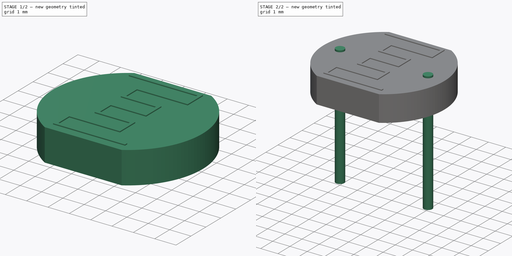
[diagram: build sequence overview — one tinted view per stage of 2, left to right]
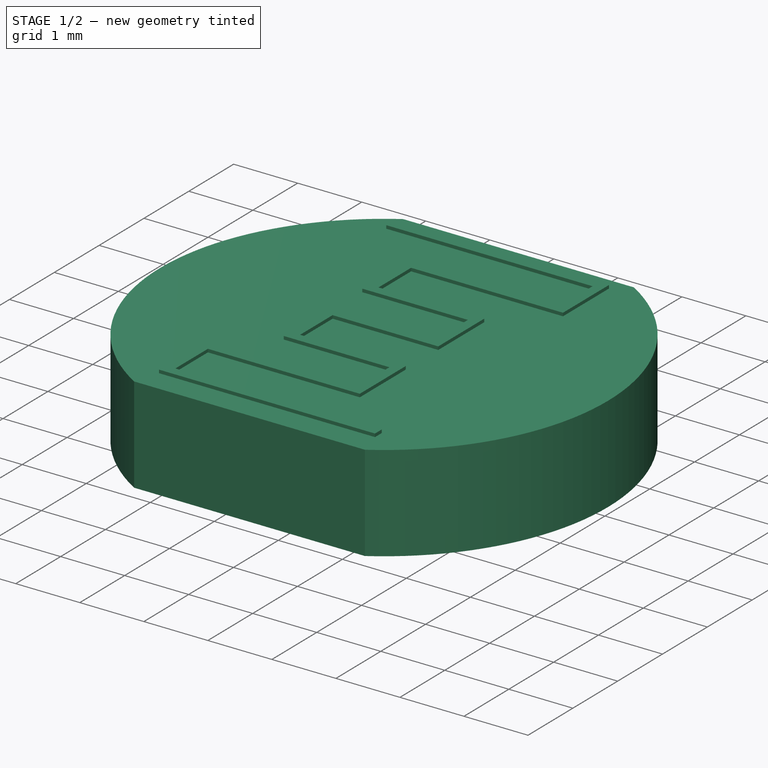
[diagram: stage 1 of 2 — iso view after this stage's code; geometry added in this stage tinted green]
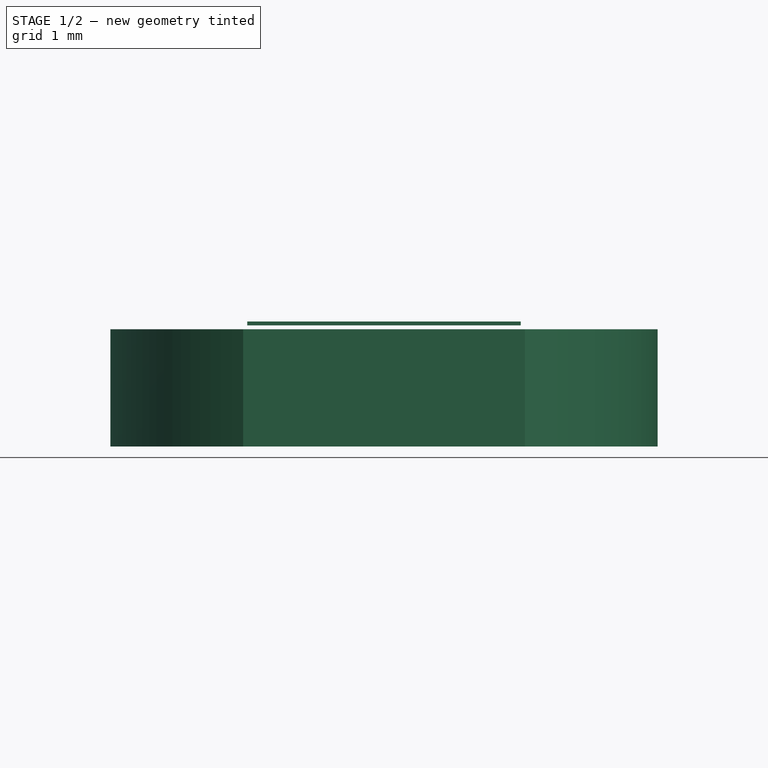
[diagram: stage 1 of 2 — front view after this stage's code; geometry added in this stage tinted green]
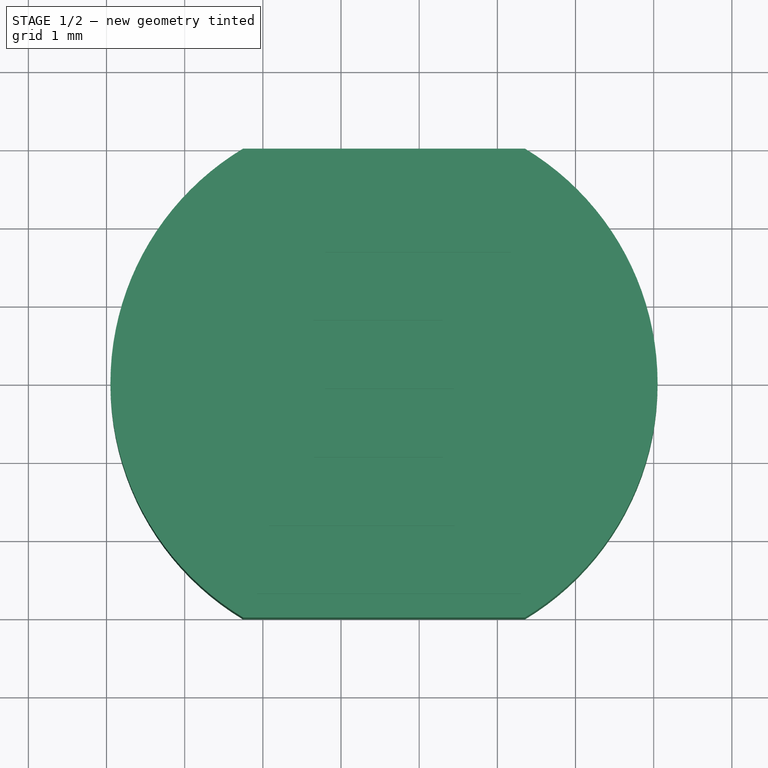
[diagram: stage 1 of 2 — top view after this stage's code; geometry added in this stage tinted green]
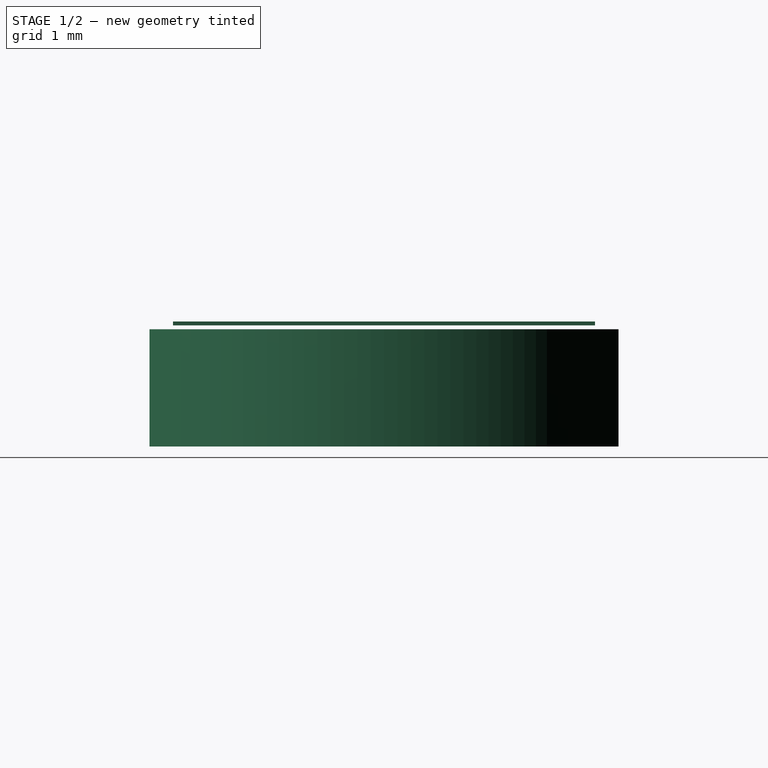
[diagram: stage 1 of 2 — right view after this stage's code; geometry added in this stage tinted green]
FCSTD DOCUMENT  (FreeCAD 0.16R6712 (Git))
Label: R_LDR_7x6mm_P5.1mm_Vertical
License: All rights reserved
LicenseURL: http://en.wikipedia.org/wiki/All_rights_reserved
objects: Sketcher::SketchObject×3, PartDesign::Pad×3, Spreadsheet::Sheet×1, Part::MultiFuse×1
note: 10 computed .brp shape members not serialized (recipe doc carries the construction recipe); baked Part::Feature solids carry a one-line shape summary decoded from their .brp

FEATURE [Sketcher::SketchObject] Sketch001
  Placement = pos=(0,0,3.9) rot=(0,0,1;0rad)
  expr: Placement.Base.z = Data.Htop - 0.1
  expr: Placement.Rotation.Axis.z = Data.Htop
  expr: Constraints[8] = Data.H
  expr: Constraints[7] = Data.DOuter / 2
  expr: Constraints[19] = Data.Wid
  expr: Constraints[21] = (Data.Wid - Data.RM) / 2
  sketch-geometry (8):
    g0: ArcOfCircle CenterX=2.55 CenterY=0 CenterZ=0 NormalX=0 NormalY=0 NormalZ=1 Radius=3.5 StartAngle=2.1119 EndAngle=4.17129
    g1: ArcOfCircle CenterX=2.55 CenterY=0 CenterZ=0 NormalX=0 NormalY=0 NormalZ=1 Radius=3.5 StartAngle=5.25349 EndAngle=7.31288
    g2: LineSegment StartX=0.747224 StartY=3 StartZ=0 EndX=4.35278 EndY=3 EndZ=0
    g3: LineSegment StartX=0.747224 StartY=-3 StartZ=0 EndX=4.35278 EndY=-3 EndZ=0
    g4: GeomPoint [constr] X=-0.95 Y=0 Z=0
    g5: GeomPoint [constr] X=6.05 Y=0 Z=0
    g6: LineSegment [constr] StartX=0.747224 StartY=3 StartZ=0 EndX=0.747224 EndY=-3 EndZ=0
    g7: GeomPoint [constr] X=0.747224 Y=0 Z=0
  constraints (22):
    c: PointOnObject(g0,g-1)
    c: Coincident(g2,g0)
    c: Coincident(g2,g1)
    c: Horizontal(g2)
    c: Coincident(g3,g0)
    c: Horizontal(g3)
    c: Equal(g1,g0)
    c: Radius(g1) = 3.5
    c: DistanceY(g1,g1) = 6
    c: PointOnObject(g4,g-1)
    c: PointOnObject(g4,g0)
    c: PointOnObject(g5,g1)
    c: PointOnObject(g5,g-1)
    c: Coincident(g1,g3)
    c: Coincident(g6,g0)
    c: Coincident(g6,g0)
    c: Vertical(g6)
    c: PointOnObject(g7,g-1)
    c: Symmetric(g6,g6,g7)
    c: DistanceX(g4,g5) = 7
    c: PointOnObject(g1,g-1)
    c: DistanceX(g4,g-1) = 0.95
FEATURE [PartDesign::Pad] Pad001
  Length = 1.5
  Length2 = 100
  Placement = pos=(0,0,3.9) rot=(0,0,1;0rad)
  Reversed = true
  Sketch = -> Sketch001
  Type = 0
  expr: Length = Data.D
FEATURE [Sketcher::SketchObject] Sketch002
  Placement = pos=(0,0,3.95) rot=(0,0,1;0rad)
  expr: Constraints[149] = Data.DStructure
  expr: Constraints[186] = Data.RM / 6
  expr: Constraints[185] = Data.RM * 0.025
  expr: Placement.Base.z = Data.Htop - 0.05
  expr: Constraints[8] = Data.H * 0.9
  expr: Constraints[11] = Data.Wid * 0.5
  expr: Constraints[18] = Data.RM / 2
  expr: Placement.Rotation.Axis.z = Data.Htop
  sketch-geometry (66):
    g0: LineSegment [constr] StartX=0.8 StartY=2.7 StartZ=0 EndX=4.3 EndY=2.7 EndZ=0
    g1: LineSegment [constr] StartX=4.3 StartY=2.7 StartZ=0 EndX=4.3 EndY=-2.7 EndZ=0
    g2: LineSegment [constr] StartX=4.3 StartY=-2.7 StartZ=0 EndX=0.8 EndY=-2.7 EndZ=0
    g3: LineSegment [constr] StartX=0.8 StartY=-2.7 StartZ=0 EndX=0.8 EndY=2.7 EndZ=0
    g4: GeomPoint [constr] X=0.8 Y=0 Z=0
    g5: LineSegment [constr] StartX=0.8 StartY=0 StartZ=0 EndX=4.3 EndY=0 EndZ=0
    g6: LineSegment [constr] StartX=0 StartY=0 StartZ=0 EndX=2.55 EndY=0 EndZ=0
    g7: LineSegment StartX=0.8 StartY=2.55 StartZ=0 EndX=4.0225 EndY=2.55 EndZ=0
    g8: LineSegment StartX=4.1725 StartY=2.55 StartZ=0 EndX=4.1725 EndY=2.7 EndZ=0
    g9: LineSegment StartX=4.1725 StartY=2.7 StartZ=0 EndX=0.8 EndY=2.7 EndZ=0
    g10: LineSegment StartX=0.8 StartY=2.7 StartZ=0 EndX=0.8 EndY=2.55 EndZ=0
    g11: LineSegment [constr] StartX=4.0225 StartY=2.55 StartZ=0 EndX=4.1725 EndY=2.55 EndZ=0
    g12: LineSegment StartX=4.1725 StartY=2.55 StartZ=0 EndX=4.1725 EndY=1.675 EndZ=0
    g13: LineSegment StartX=4.1725 StartY=1.675 StartZ=0 EndX=4.0225 EndY=1.675 EndZ=0
    g14: LineSegment StartX=4.0225 StartY=1.825 StartZ=0 EndX=4.0225 EndY=2.55 EndZ=0
    g15: LineSegment StartX=4.0225 StartY=1.825 StartZ=0 EndX=1.65 EndY=1.825 EndZ=0
    g16: LineSegment StartX=1.65 StartY=1.825 StartZ=0 EndX=1.65 EndY=1.675 EndZ=0
    g17: LineSegment StartX=1.8 StartY=1.675 StartZ=0 EndX=4.0225 EndY=1.675 EndZ=0
    g18: LineSegment [constr] StartX=4.0225 StartY=1.675 StartZ=0 EndX=4.0225 EndY=1.825 EndZ=0
    g19: LineSegment [constr] StartX=1.8 StartY=1.675 StartZ=0 EndX=1.65 EndY=1.675 EndZ=0
    g20: LineSegment StartX=1.65 StartY=1.675 StartZ=0 EndX=1.65 EndY=0.8 EndZ=0
    g21: LineSegment StartX=1.65 StartY=0.8 StartZ=0 EndX=1.8 EndY=0.8 EndZ=0
    g22: LineSegment StartX=1.8 StartY=0.95 StartZ=0 EndX=1.8 EndY=1.675 EndZ=0
    g23: LineSegment StartX=1.8 StartY=0.95 StartZ=0 EndX=3.45 EndY=0.95 EndZ=0
    g24: LineSegment StartX=3.45 StartY=0.95 StartZ=0 EndX=3.45 EndY=0.8 EndZ=0
    g25: LineSegment StartX=3.3 StartY=0.8 StartZ=0 EndX=1.8 EndY=0.8 EndZ=0
    g26: LineSegment [constr] StartX=1.8 StartY=0.8 StartZ=0 EndX=1.8 EndY=0.95 EndZ=0
    g27: LineSegment [constr] StartX=3.3 StartY=0.8 StartZ=0 EndX=3.45 EndY=0.8 EndZ=0
    g28: LineSegment StartX=3.45 StartY=0.8 StartZ=0 EndX=3.45 EndY=-0.075 EndZ=0
    g29: LineSegment StartX=3.45 StartY=-0.075 StartZ=0 EndX=3.3 EndY=-0.075 EndZ=0
    g30: LineSegment StartX=3.3 StartY=0.075 StartZ=0 EndX=1.65 EndY=0.075 EndZ=0
    g31: LineSegment StartX=1.65 StartY=0.075 StartZ=0 EndX=1.65 EndY=-0.075 EndZ=0
    g32: LineSegment StartX=1.8 StartY=-0.075 StartZ=0 EndX=3.3 EndY=-0.075 EndZ=0
    g33: LineSegment [constr] StartX=3.3 StartY=-0.075 StartZ=0 EndX=3.3 EndY=0.075 EndZ=0
    g34: LineSegment [constr] StartX=1.8 StartY=-0.075 StartZ=0 EndX=1.65 EndY=-0.075 EndZ=0
    g35: LineSegment StartX=1.65 StartY=-0.075 StartZ=0 EndX=1.65 EndY=-0.95 EndZ=0
    g36: LineSegment StartX=1.65 StartY=-0.95 StartZ=0 EndX=1.8 EndY=-0.95 EndZ=0
    g37: LineSegment StartX=1.8 StartY=-0.8 StartZ=0 EndX=1.8 EndY=-0.075 EndZ=0
    g38: LineSegment StartX=1.8 StartY=-0.8 StartZ=0 EndX=3.45 EndY=-0.8 EndZ=0
    g39: LineSegment StartX=3.45 StartY=-0.8 StartZ=0 EndX=3.45 EndY=-0.95 EndZ=0
    g40: LineSegment StartX=3.3 StartY=-0.95 StartZ=0 EndX=1.8 EndY=-0.95 EndZ=0
    g41: LineSegment [constr] StartX=1.8 StartY=-0.95 StartZ=0 EndX=1.8 EndY=-0.8 EndZ=0
    g42: LineSegment [constr] StartX=3.3 StartY=-0.95 StartZ=0 EndX=3.45 EndY=-0.95 EndZ=0
    g43: LineSegment StartX=3.45 StartY=-0.95 StartZ=0 EndX=3.45 EndY=-1.825 EndZ=0
    g44: LineSegment StartX=3.45 StartY=-1.825 StartZ=0 EndX=3.3 EndY=-1.825 EndZ=0
    g45: LineSegment StartX=3.3 StartY=-1.675 StartZ=0 EndX=3.3 EndY=-0.95 EndZ=0
    g46: LineSegment StartX=3.3 StartY=-1.675 StartZ=0 EndX=0.9275 EndY=-1.675 EndZ=0
    g47: LineSegment StartX=0.9275 StartY=-1.675 StartZ=0 EndX=0.9275 EndY=-1.825 EndZ=0
    g48: LineSegment StartX=1.0775 StartY=-1.825 StartZ=0 EndX=3.3 EndY=-1.825 EndZ=0
    g49: LineSegment [constr] StartX=3.3 StartY=-1.825 StartZ=0 EndX=3.3 EndY=-1.675 EndZ=0
    g50: LineSegment [constr] StartX=1.0775 StartY=-1.825 StartZ=0 EndX=0.9275 EndY=-1.825 EndZ=0
    g51: LineSegment StartX=0.9275 StartY=-1.825 StartZ=0 EndX=0.9275 EndY=-2.7 EndZ=0
    g52: LineSegment StartX=0.9275 StartY=-2.7 StartZ=0 EndX=1.0775 EndY=-2.7 EndZ=0
    g53: LineSegment StartX=1.0775 StartY=-2.55 StartZ=0 EndX=1.0775 EndY=-1.825 EndZ=0
    g54: LineSegment StartX=1.0775 StartY=-2.55 StartZ=0 EndX=4.3 EndY=-2.55 EndZ=0
    g55: LineSegment StartX=4.3 StartY=-2.55 StartZ=0 EndX=4.3 EndY=-2.7 EndZ=0
    g56: LineSegment StartX=4.3 StartY=-2.7 StartZ=0 EndX=1.0775 EndY=-2.7 EndZ=0
    g57: LineSegment [constr] StartX=1.0775 StartY=-2.7 StartZ=0 EndX=1.0775 EndY=-2.55 EndZ=0
    g58: LineSegment [constr] StartX=0.9275 StartY=-1.675 StartZ=0 EndX=0.8 EndY=-1.675 EndZ=0
    g59: LineSegment [constr] StartX=4.1725 StartY=1.675 StartZ=0 EndX=4.3 EndY=1.675 EndZ=0
    g60: LineSegment [constr] StartX=1.65 StartY=0.8 StartZ=0 EndX=1.65 EndY=0.075 EndZ=0
    g61: LineSegment StartX=3.3 StartY=0.8 StartZ=0 EndX=3.3 EndY=0.075 EndZ=0
    g62: GeomPoint [constr] X=3.3 Y=0 Z=0
    g63: LineSegment [constr] StartX=1.65 StartY=1.825 StartZ=0 EndX=0.8 EndY=1.825 EndZ=0
    g64: LineSegment [constr] StartX=3.45 StartY=-1.825 StartZ=0 EndX=4.3 EndY=-1.825 EndZ=0
    g65: LineSegment [constr] StartX=3.45 StartY=-0.075 StartZ=0 EndX=3.45 EndY=-0.8 EndZ=0
  constraints (190):
    c: Coincident(g0,g1)
    c: Coincident(g1,g2)
    c: Coincident(g2,g3)
    c: Coincident(g3,g0)
    c: Horizontal(g0)
    c: Horizontal(g2)
    c: Vertical(g1)
    c: Vertical(g3)
    c: DistanceY(g1,g1) = 5.4
    c: PointOnObject(g4,g-1)
    c: Symmetric(g3,g3,g4)
    c: DistanceX(g0,g0) = 3.5
    c: Coincident(g5,g4)
    c: PointOnObject(g5,g1)
    c: Horizontal(g5)
    c: Coincident(g6,g-1)
    c: PointOnObject(g6,g5)
    c: Symmetric(g5,g5,g6)
    c: DistanceX(g6,g6) = 2.55
    c: Coincident(g8,g9)
    c: Coincident(g9,g10)
    c: Coincident(g10,g7)
    c: Horizontal(g7)
    c: Horizontal(g9)
    c: Vertical(g8)
    c: Vertical(g10)
    c: PointOnObject(g10,g3)
    c: PointOnObject(g8,g0)
    c: Coincident(g11,g12)
    c: Coincident(g12,g13)
    c: Coincident(g14,g11)
    c: Horizontal(g11)
    c: Horizontal(g13)
    c: Vertical(g12)
    c: Vertical(g14)
    c: PointOnObject(g11,g7)
    c: Coincident(g15,g16)
    c: Coincident(g17,g18)
    c: Horizontal(g15)
    c: Horizontal(g17)
    c: Vertical(g16)
    c: Vertical(g18)
    c: PointOnObject(g18,g14)
    c: Coincident(g19,g20)
    c: Coincident(g20,g21)
    c: Coincident(g22,g19)
    c: Horizontal(g19)
    c: Horizontal(g21)
    c: Vertical(g20)
    c: Vertical(g22)
    c: PointOnObject(g19,g17)
    c: Coincident(g23,g24)
    c: Coincident(g25,g26)
    c: Horizontal(g23)
    c: Horizontal(g25)
    c: Vertical(g24)
    c: Vertical(g26)
    c: PointOnObject(g26,g22)
    c: Coincident(g27,g28)
    c: Coincident(g28,g29)
    c: Horizontal(g27)
    c: Horizontal(g29)
    c: Vertical(g28)
    c: PointOnObject(g27,g25)
    c: Coincident(g30,g31)
    c: Coincident(g32,g33)
    c: Coincident(g33,g30)
    c: Horizontal(g30)
    c: Horizontal(g32)
    c: Vertical(g31)
    c: Vertical(g33)
    c: Coincident(g34,g35)
    c: Coincident(g35,g36)
    c: Coincident(g37,g34)
    c: Horizontal(g34)
    c: Horizontal(g36)
    c: Vertical(g35)
    c: Vertical(g37)
    c: PointOnObject(g34,g32)
    c: Coincident(g38,g39)
    c: Coincident(g40,g41)
    c: Horizontal(g38)
    c: Horizontal(g40)
    c: Vertical(g39)
    c: Vertical(g41)
    c: PointOnObject(g41,g37)
    c: Coincident(g43,g44)
    c: Coincident(g45,g42)
    c: Horizontal(g42)
    c: Horizontal(g44)
    c: Vertical(g43)
    c: Vertical(g45)
    c: PointOnObject(g42,g40)
    c: Coincident(g46,g47)
    c: Coincident(g48,g49)
    c: Horizontal(g46)
    c: Horizontal(g48)
    c: Vertical(g47)
    c: Vertical(g49)
    c: PointOnObject(g49,g45)
    c: Coincident(g50,g51)
    c: Coincident(g51,g52)
    c: Coincident(g53,g50)
    c: Horizontal(g50)
    c: Horizontal(g52)
    c: Vertical(g51)
    c: Vertical(g53)
    c: PointOnObject(g50,g48)
    c: Coincident(g54,g55)
    c: Coincident(g55,g56)
    c: Coincident(g56,g57)
    c: Horizontal(g54)
    c: Horizontal(g56)
    c: Vertical(g55)
    c: Vertical(g57)
    c: Coincident(g52,g56)
    c: Coincident(g44,g48)
    c: Coincident(g47,g50)
    c: Coincident(g36,g40)
    c: Coincident(g31,g34)
    c: Coincident(g29,g32)
    c: Coincident(g24,g27)
    c: Coincident(g21,g25)
    c: Coincident(g16,g19)
    c: Coincident(g13,g17)
    c: Coincident(g8,g11)
    c: PointOnObject(g7,g14)
    c: Coincident(g14,g15)
    c: PointOnObject(g17,g22)
    c: Coincident(g22,g23)
    c: PointOnObject(g32,g37)
    c: Coincident(g37,g38)
    c: PointOnObject(g40,g45)
    c: Coincident(g45,g46)
    c: PointOnObject(g48,g53)
    c: Coincident(g53,g54)
    c: Equal(g11,g18)
    c: Equal(g18,g19)
    c: Equal(g19,g26)
    c: Equal(g26,g27)
    c: Equal(g27,g33)
    c: Equal(g33,g34)
    c: Equal(g34,g41)
    c: Equal(g41,g42)
    c: Equal(g42,g49)
    c: Equal(g49,g50)
    c: Equal(g50,g57)
    c: Equal(g57,g52)
    c: Equal(g52,g8)
    c: DistanceY(g8,g8) = 0.15
    c: Coincident(g55,g1)
    c: Coincident(g57,g53)
    c: Coincident(g58,g46)
    c: PointOnObject(g58,g3)
    c: Horizontal(g58)
    c: Coincident(g59,g12)
    c: Horizontal(g59)
    c: Equal(g59,g58)
    c: Coincident(g60,g20)
    c: Coincident(g60,g30)
    c: Vertical(g60)
    c: Coincident(g39,g42)
    c: Coincident(g39,g43)
    c: Coincident(g61,g25)
    c: Coincident(g61,g30)
    c: Vertical(g61)
    c: PointOnObject(g62,g5)
    c: Symmetric(g33,g33,g62)
    c: Coincident(g27,g25)
    c: Coincident(g63,g15)
    c: PointOnObject(g63,g3)
    c: Horizontal(g63)
    c: Coincident(g64,g43)
    c: PointOnObject(g64,g1)
    c: Horizontal(g64)
    c: Coincident(g65,g28)
    c: Coincident(g65,g38)
    c: Vertical(g65)
    c: Equal(g64,g63)
    c: Equal(g37,g45)
    c: Equal(g45,g61)
    c: Equal(g61,g53)
    c: Equal(g53,g22)
    c: Equal(g22,g14)
    c: PointOnObject(g59,g1)
    c: DistanceX(g59,g59) = 0.1275
    c: DistanceX(g63,g63) = 0.85
    c: Coincident(g49,g45)
    c: Coincident(g41,g37)
    c: Coincident(g22,g26)
FEATURE [PartDesign::Pad] Pad002
  Length = 0.05
  Length2 = 100
  Placement = pos=(0,0,3.95) rot=(0,0,1;0rad)
  Sketch = -> Sketch002
  Type = 0
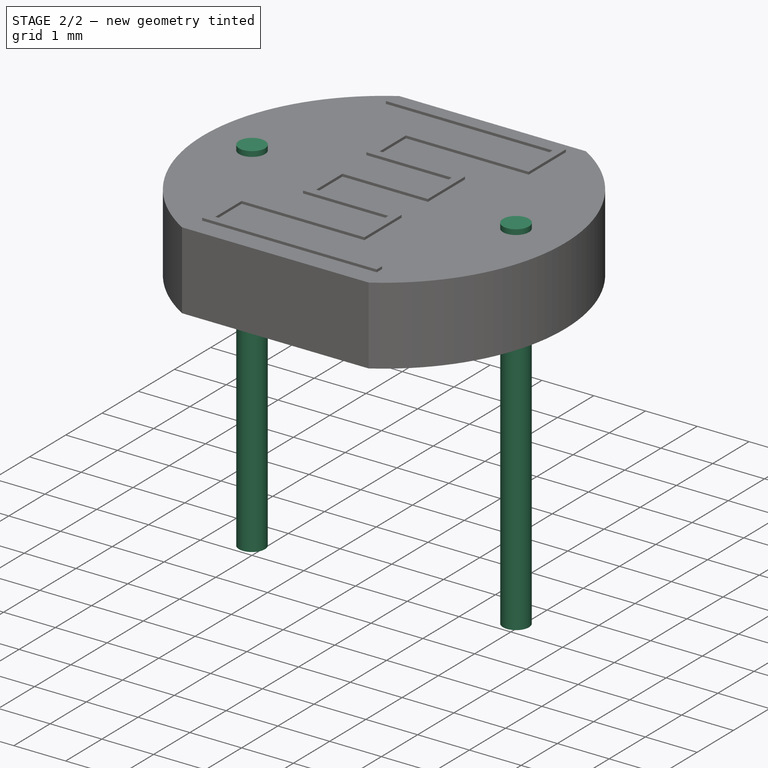
[diagram: stage 2 of 2 — iso view after this stage's code; geometry added in this stage tinted green]
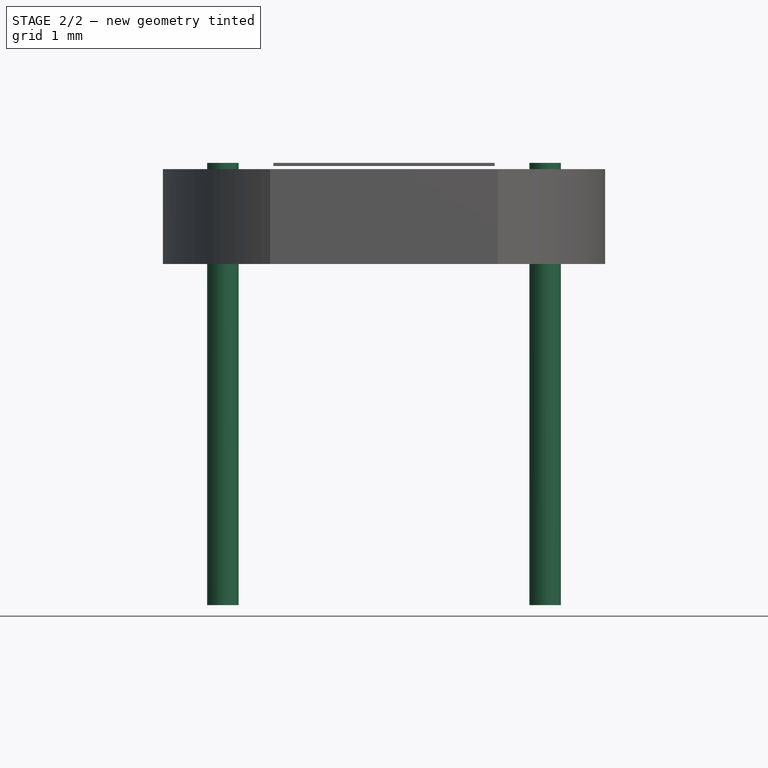
[diagram: stage 2 of 2 — front view after this stage's code; geometry added in this stage tinted green]
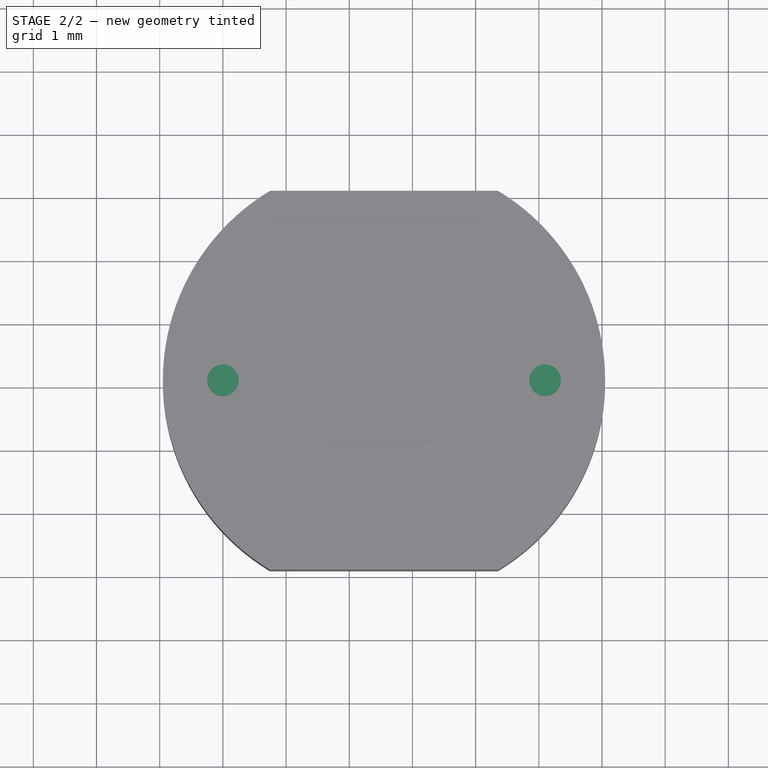
[diagram: stage 2 of 2 — top view after this stage's code; geometry added in this stage tinted green]
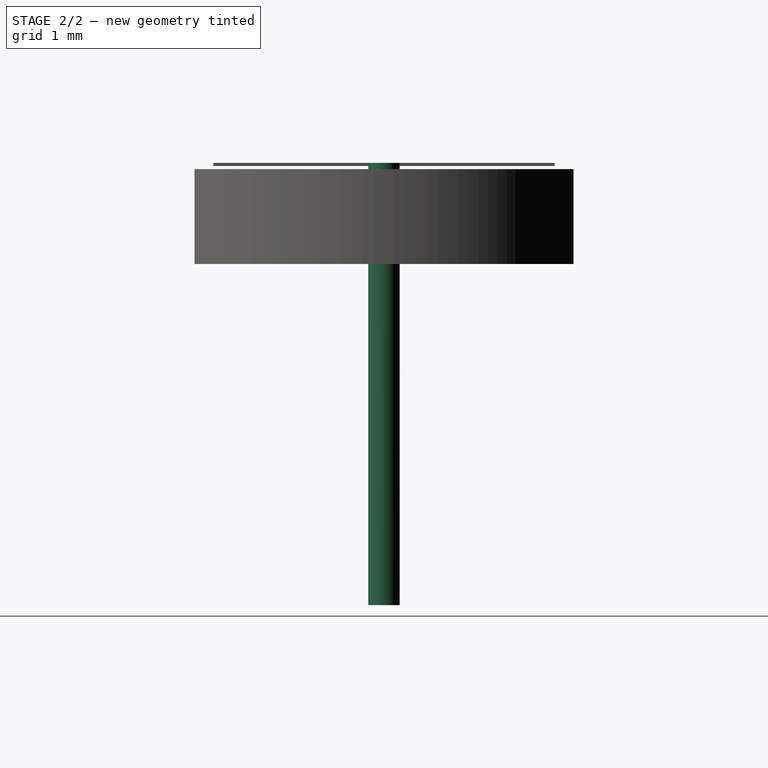
[diagram: stage 2 of 2 — right view after this stage's code; geometry added in this stage tinted green]
FEATURE [Sketcher::SketchObject] Sketch
  expr: Constraints[3] = Data.DWire / 2
  expr: Constraints[4] = Data.RM
  sketch-geometry (2):
    g0: Circle CenterX=0 CenterY=0 CenterZ=0 NormalX=0 NormalY=0 NormalZ=1 Radius=0.25
    g1: Circle CenterX=5.1 CenterY=0 CenterZ=0 NormalX=0 NormalY=0 NormalZ=1 Radius=0.25
  constraints (5):
    c: Coincident(g0,g-1)
    c: PointOnObject(g1,g-1)
    c: Equal(g1,g0)
    c: Radius(g1) = 0.25
    c: DistanceX(g-1,g1) = 5.1
FEATURE [PartDesign::Pad] Pad
  Length = 4
  Length2 = 3
  Sketch = -> Sketch
  Type = 4
  expr: Length2 = Data.Hbottom
  expr: Length = Data.Htop
FEATURE [Spreadsheet::Sheet] Spreadsheet  label="Data"
  cells = A1=W; B1(Wid)=7; A2=H; B2(H)=6; A3=D; B3(D)=1.5; A4=Dwire; B4(DWire)=0.5; A5=RM; B5(RM)=5.1; A6=Htop; B6(Htop)=4; A7=Hbottom; B7(Hbottom)=3; A8=DOuter; B8(DOuter)=7; A9=DStructure; B9(DStructure)=0.15
FEATURE [Part::MultiFuse] Pad002_mp_cp  label="R_LDR_7x6mm_P5.1mm_Vertical"
  Shapes = -> [Pad002,Pad001,Pad]
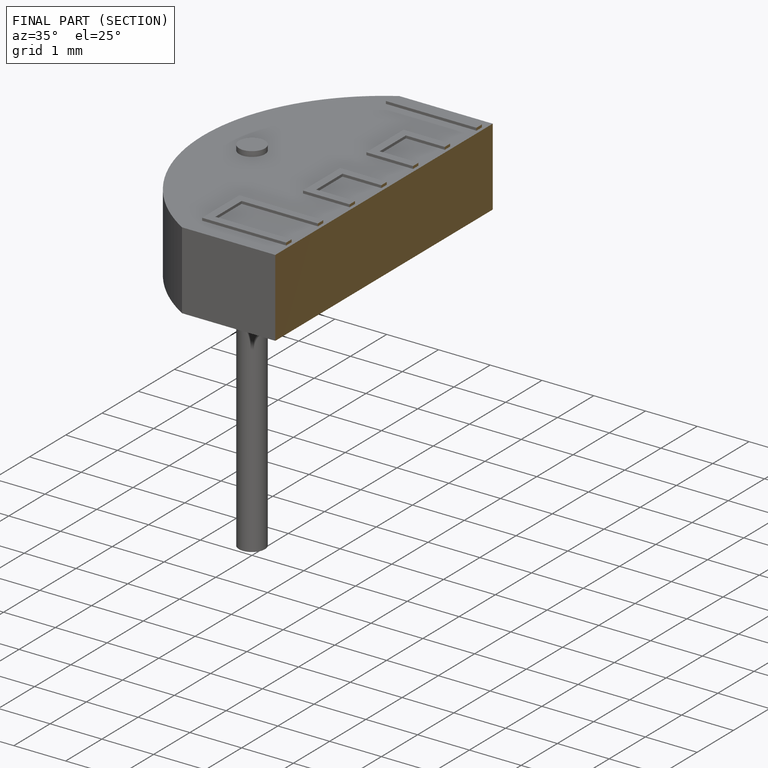
[diagram: finished part — half-section view (interior)]
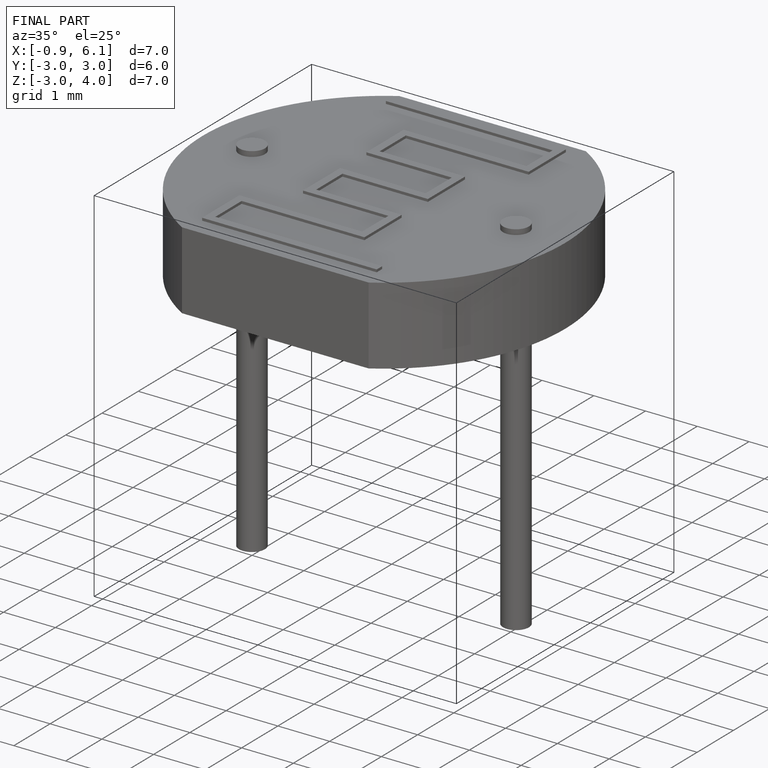
[diagram: finished part — iso view with bounding-box wireframe]
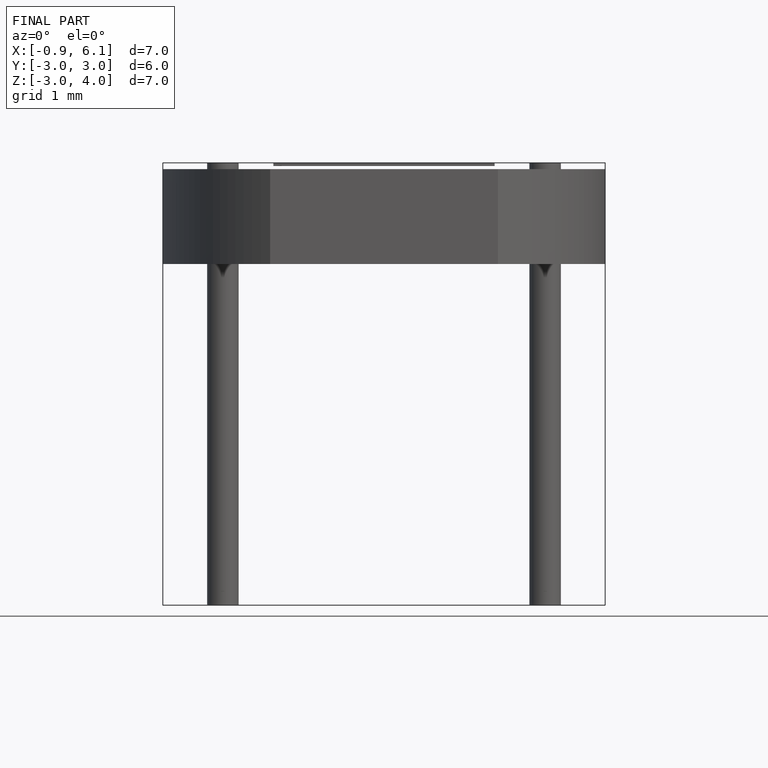
[diagram: finished part — front view with bounding-box wireframe]
